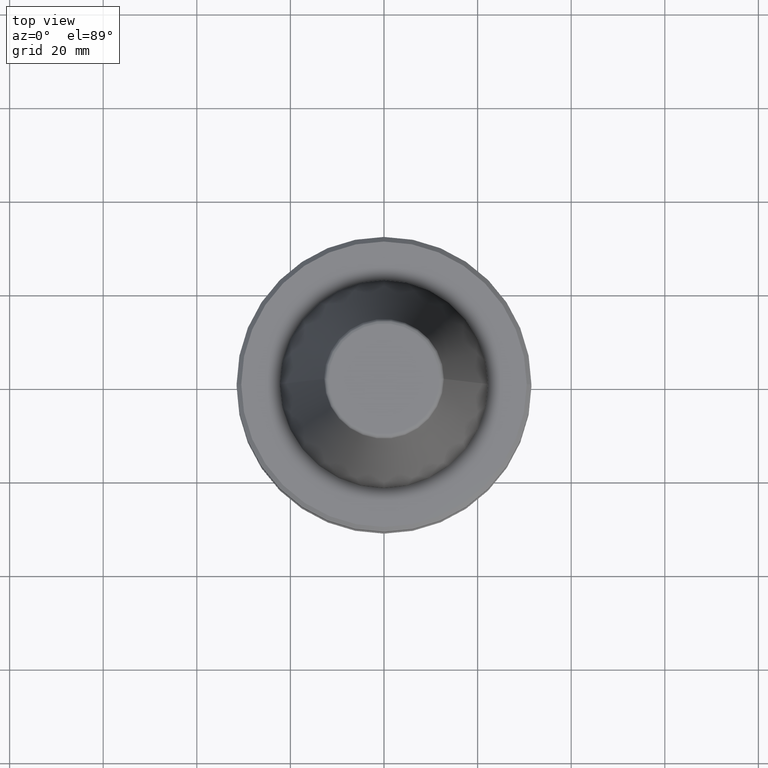
[diagram: clean part render]
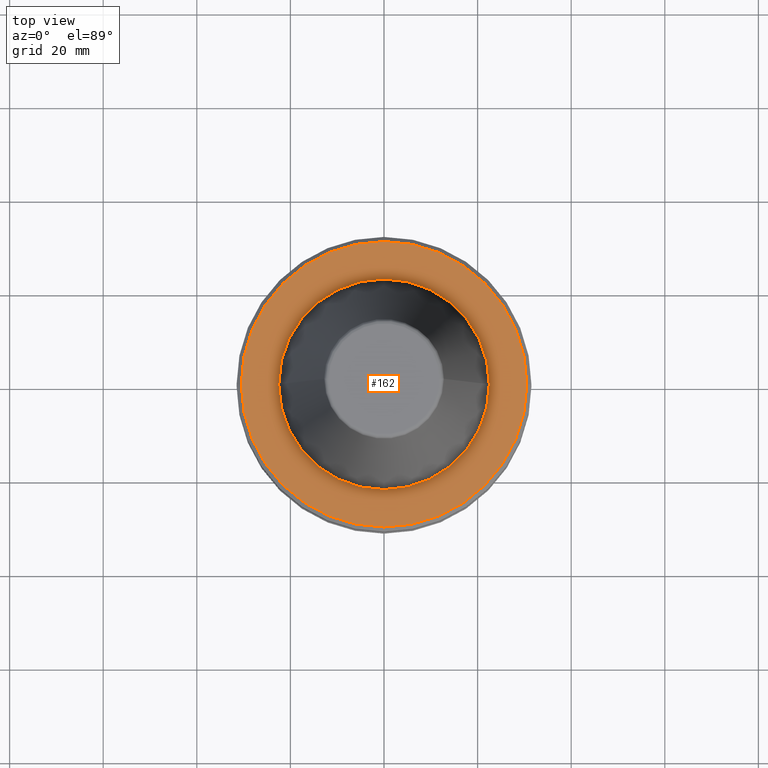
[diagram: same view with one face highlighted and labeled with its STEP entity id]
A machine part, top view. The second image highlights one B-rep face of the part: STEP entity #162.
In plain terms, the highlighted planar face has unit normal (0, 0, -1).
Its self-contained STEP definition (entity closure, byte-faithful):
#91 = CIRCLE ( 'NONE', #155, 30.50000000000008200 ) ;
#97 = DIRECTION ( 'NONE',  ( 1.000000000000000000, 0.0000000000000000000, 0.0000000000000000000 ) ) ;
#112 = VERTEX_POINT ( 'NONE', #625 ) ;
#113 = EDGE_CURVE ( 'NONE', #1010, #552, #943, .T. ) ;
#119 = DIRECTION ( 'NONE',  ( -0.0000000000000000000, -0.0000000000000000000, 1.000000000000000000 ) ) ;
#155 = AXIS2_PLACEMENT_3D ( 'NONE', #455, #119, #277 ) ;
#162 = ADVANCED_FACE ( 'NONE', ( #642, #483 ), #474, .F. ) ;
#178 = DIRECTION ( 'NONE',  ( -0.0000000000000000000, -0.0000000000000000000, 1.000000000000000000 ) ) ;
#231 = EDGE_LOOP ( 'NONE', ( #703, #589 ) ) ;
#269 = AXIS2_PLACEMENT_3D ( 'NONE', #576, #424, #906 ) ;
#277 = DIRECTION ( 'NONE',  ( 1.000000000000000000, 0.0000000000000000000, 0.0000000000000000000 ) ) ;
#374 = EDGE_CURVE ( 'NONE', #646, #112, #757, .T. ) ;
#385 = DIRECTION ( 'NONE',  ( -0.0000000000000000000, -0.0000000000000000000, 1.000000000000000000 ) ) ;
#411 = ORIENTED_EDGE ( 'NONE', *, *, #956, .F. ) ;
#419 = CARTESIAN_POINT ( 'NONE',  ( 0.0000000000000000000, 0.0000000000000000000, -1.999999999999779700 ) ) ;
#424 = DIRECTION ( 'NONE',  ( 0.0000000000000000000, 0.0000000000000000000, -1.000000000000000000 ) ) ;
#433 = ORIENTED_EDGE ( 'NONE', *, *, #374, .F. ) ;
#455 = CARTESIAN_POINT ( 'NONE',  ( 0.0000000000000000000, 0.0000000000000000000, -1.999999999999779700 ) ) ;
#474 = PLANE ( 'NONE',  #269 ) ;
#483 = FACE_OUTER_BOUND ( 'NONE', #231, .T. ) ;
#552 = VERTEX_POINT ( 'NONE', #775 ) ;
#576 = CARTESIAN_POINT ( 'NONE',  ( 0.0000000000000000000, 30.50000000000008200, -1.999999999999779700 ) ) ;
#582 = CARTESIAN_POINT ( 'NONE',  ( 0.0000000000000000000, 0.0000000000000000000, -1.999999999999779700 ) ) ;
#589 = ORIENTED_EDGE ( 'NONE', *, *, #878, .T. ) ;
#625 = CARTESIAN_POINT ( 'NONE',  ( 22.50000000000007500, 0.0000000000000000000, -1.999999999999821500 ) ) ;
#631 = CIRCLE ( 'NONE', #731, 22.50000000000007500 ) ;
#642 = FACE_BOUND ( 'NONE', #978, .T. ) ;
#646 = VERTEX_POINT ( 'NONE', #930 ) ;
#703 = ORIENTED_EDGE ( 'NONE', *, *, #113, .T. ) ;
#731 = AXIS2_PLACEMENT_3D ( 'NONE', #419, #178, #97 ) ;
#757 = CIRCLE ( 'NONE', #789, 22.50000000000007500 ) ;
#775 = CARTESIAN_POINT ( 'NONE',  ( 30.50000000000008200, 3.796405077356805400E-015, -1.999999999999779700 ) ) ;
#789 = AXIS2_PLACEMENT_3D ( 'NONE', #582, #385, #959 ) ;
#836 = CARTESIAN_POINT ( 'NONE',  ( -30.50000000000008200, 0.0000000000000000000, -1.999999999999779700 ) ) ;
#859 = AXIS2_PLACEMENT_3D ( 'NONE', #1016, #986, #984 ) ;
#878 = EDGE_CURVE ( 'NONE', #552, #1010, #91, .T. ) ;
#906 = DIRECTION ( 'NONE',  ( -1.000000000000000000, 0.0000000000000000000, -0.0000000000000000000 ) ) ;
#930 = CARTESIAN_POINT ( 'NONE',  ( -22.50000000000007500, 2.755455298081553500E-015, -1.999999999999821500 ) ) ;
#943 = CIRCLE ( 'NONE', #859, 30.50000000000008200 ) ;
#956 = EDGE_CURVE ( 'NONE', #112, #646, #631, .T. ) ;
#959 = DIRECTION ( 'NONE',  ( 1.000000000000000000, 0.0000000000000000000, 0.0000000000000000000 ) ) ;
#978 = EDGE_LOOP ( 'NONE', ( #411, #433 ) ) ;
#984 = DIRECTION ( 'NONE',  ( 1.000000000000000000, 0.0000000000000000000, 0.0000000000000000000 ) ) ;
#986 = DIRECTION ( 'NONE',  ( -0.0000000000000000000, -0.0000000000000000000, 1.000000000000000000 ) ) ;
#1010 = VERTEX_POINT ( 'NONE', #836 ) ;
#1016 = CARTESIAN_POINT ( 'NONE',  ( 0.0000000000000000000, 0.0000000000000000000, -1.999999999999779700 ) ) ;